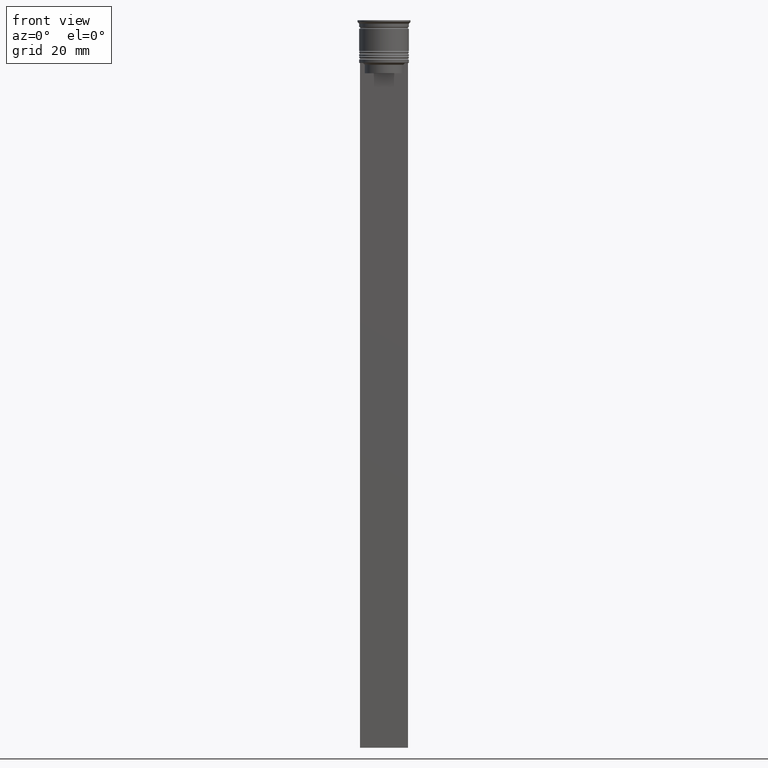
[diagram: clean part render]
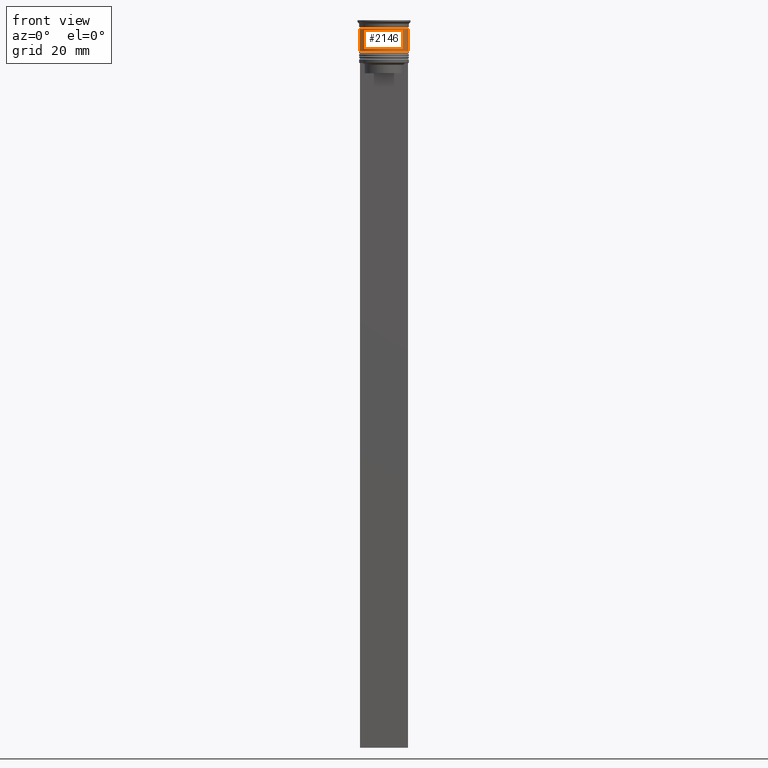
[diagram: same view with one face highlighted and labeled with its STEP entity id]
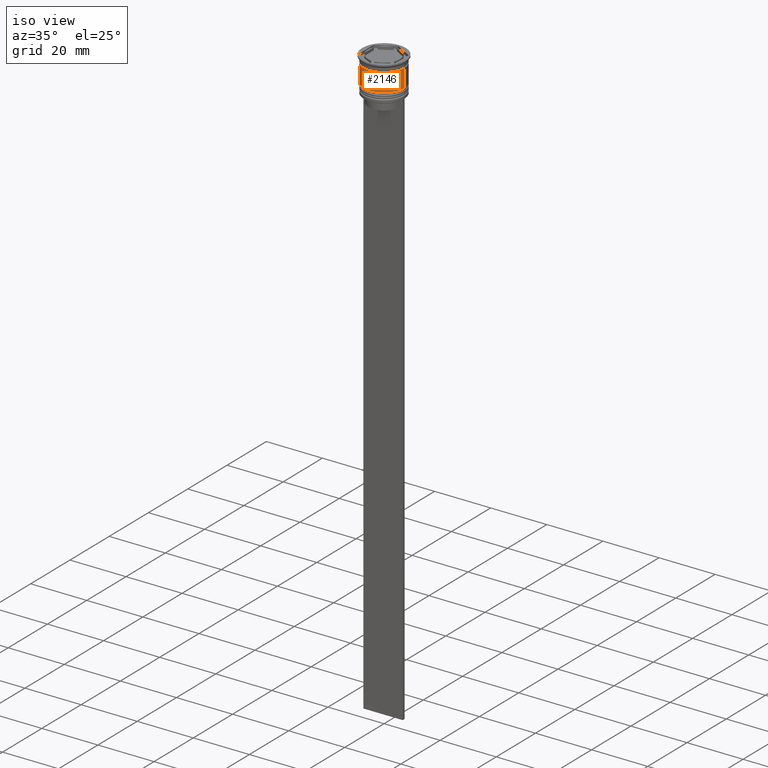
[diagram: same view with one face highlighted and labeled with its STEP entity id]
A machine part, front view. The second image highlights one B-rep face of the part: STEP entity #2146.
A second angle (iso view) of the same face is appended — the face is thin or edge-on in the first view.
In plain terms, the highlighted cylindrical surface (edge-blend (fillet) strip) has radius 7.25 mm, axis along (-0, -0, 1).
Its self-contained STEP definition (entity closure, byte-faithful):
#2 = CARTESIAN_POINT ( 'NONE',  ( -7.250000000000000888, 8.878689293818312046E-16, -9.000000000000001776 ) ) ;
#54 = VERTEX_POINT ( 'NONE', #2 ) ;
#82 = FACE_OUTER_BOUND ( 'NONE', #999, .T. ) ;
#83 = DIRECTION ( 'NONE',  ( 1.000000000000000000, 0.000000000000000000, 0.000000000000000000 ) ) ;
#381 = LINE ( 'NONE', #1640, #1115 ) ;
#416 = DIRECTION ( 'NONE',  ( 1.000000000000000000, 0.000000000000000000, 0.000000000000000000 ) ) ;
#426 = CARTESIAN_POINT ( 'NONE',  ( 7.249999999999999112, 0.000000000000000000, 0.000000000000000000 ) ) ;
#445 = VERTEX_POINT ( 'NONE', #1816 ) ;
#568 = ORIENTED_EDGE ( 'NONE', *, *, #1152, .T. ) ;
#698 = CIRCLE ( 'NONE', #1685, 7.250000000000000888 ) ;
#757 = LINE ( 'NONE', #426, #889 ) ;
#759 = DIRECTION ( 'NONE',  ( -0.000000000000000000, -0.000000000000000000, 1.000000000000000000 ) ) ;
#773 = CARTESIAN_POINT ( 'NONE',  ( 0.000000000000000000, 0.000000000000000000, -2.500000000000000444 ) ) ;
#784 = CARTESIAN_POINT ( 'NONE',  ( 0.000000000000000000, 0.000000000000000000, 0.000000000000000000 ) ) ;
#889 = VECTOR ( 'NONE', #1480, 1000.000000000000000 ) ;
#999 = EDGE_LOOP ( 'NONE', ( #1275, #568, #1186, #2201 ) ) ;
#1007 = VERTEX_POINT ( 'NONE', #2067 ) ;
#1115 = VECTOR ( 'NONE', #759, 1000.000000000000000 ) ;
#1152 = EDGE_CURVE ( 'NONE', #54, #1007, #698, .T. ) ;
#1180 = AXIS2_PLACEMENT_3D ( 'NONE', #773, #1673, #1542 ) ;
#1186 = ORIENTED_EDGE ( 'NONE', *, *, #2082, .T. ) ;
#1275 = ORIENTED_EDGE ( 'NONE', *, *, #1513, .F. ) ;
#1480 = DIRECTION ( 'NONE',  ( -0.000000000000000000, -0.000000000000000000, 1.000000000000000000 ) ) ;
#1506 = DIRECTION ( 'NONE',  ( -0.000000000000000000, -0.000000000000000000, 1.000000000000000000 ) ) ;
#1513 = EDGE_CURVE ( 'NONE', #54, #2092, #381, .T. ) ;
#1516 = CYLINDRICAL_SURFACE ( 'NONE', #1804, 7.249999999999999112 ) ;
#1542 = DIRECTION ( 'NONE',  ( 1.000000000000000000, 0.000000000000000000, 0.000000000000000000 ) ) ;
#1552 = DIRECTION ( 'NONE',  ( -0.000000000000000000, -0.000000000000000000, 1.000000000000000000 ) ) ;
#1640 = CARTESIAN_POINT ( 'NONE',  ( -7.249999999999999112, 8.878689293818310074E-16, 0.000000000000000000 ) ) ;
#1673 = DIRECTION ( 'NONE',  ( -0.000000000000000000, -0.000000000000000000, 1.000000000000000000 ) ) ;
#1685 = AXIS2_PLACEMENT_3D ( 'NONE', #1947, #1552, #83 ) ;
#1716 = EDGE_CURVE ( 'NONE', #2092, #445, #2321, .T. ) ;
#1804 = AXIS2_PLACEMENT_3D ( 'NONE', #784, #1506, #416 ) ;
#1816 = CARTESIAN_POINT ( 'NONE',  ( 7.249999999999997335, 0.000000000000000000, -2.500000000000000444 ) ) ;
#1947 = CARTESIAN_POINT ( 'NONE',  ( 0.000000000000000000, 0.000000000000000000, -9.000000000000001776 ) ) ;
#2067 = CARTESIAN_POINT ( 'NONE',  ( 7.250000000000000888, 0.000000000000000000, -9.000000000000001776 ) ) ;
#2082 = EDGE_CURVE ( 'NONE', #1007, #445, #757, .T. ) ;
#2092 = VERTEX_POINT ( 'NONE', #2230 ) ;
#2146 = ADVANCED_FACE ( 'NONE', ( #82 ), #1516, .T. ) ;
#2201 = ORIENTED_EDGE ( 'NONE', *, *, #1716, .F. ) ;
#2230 = CARTESIAN_POINT ( 'NONE',  ( -7.249999999999997335, 8.878689293818308102E-16, -2.500000000000000444 ) ) ;
#2321 = CIRCLE ( 'NONE', #1180, 7.249999999999997335 ) ;